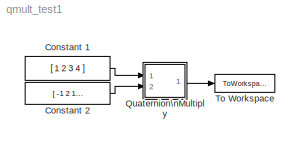
MODEL qmult_test1
KIND model
BLOCK [Constant] Constant 1
  Value = [ 1 2 3 4 ]
BLOCK [Constant] Constant 2
  Value = [  -1  2  1  -3 ]
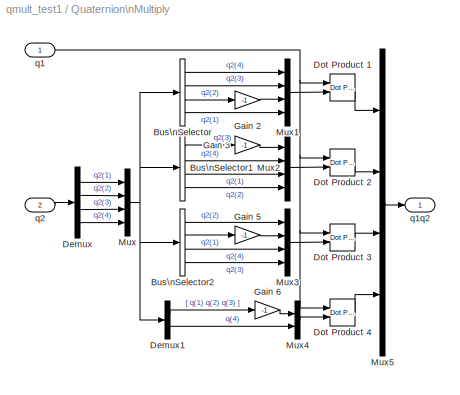
BLOCK [SubSystem] Quaternion\nMultiply
  FunctionWithSeparateData = off
  MaskDescription = q3 = (q1)(q2)
  MaskIconFrame = on
  MaskIconOpaque = on
  MaskIconRotate = none
  MaskIconUnits = pixels
  MaskType = Quaternion Multiply
  MinAlgLoopOccurrences = off
  Ports = [2, 1]
  RTWSystemCode = Auto
BLOCK [BusSelector] Quaternion\nMultiply/Bus\nSelector
  OutputSignals = q2(4),q2(3),q2(2),q2(1)
  Ports = [1, 4]
BLOCK [BusSelector] Quaternion\nMultiply/Bus\nSelector1
  OutputSignals = q2(3),q2(4),q2(1),q2(2)
  Ports = [1, 4]
BLOCK [BusSelector] Quaternion\nMultiply/Bus\nSelector2
  OutputSignals = q2(2),q2(1),q2(4),q2(3)
  Ports = [1, 4]
BLOCK [Demux] Quaternion\nMultiply/Demux
  Ports = [1, 4]
BLOCK [Demux] Quaternion\nMultiply/Demux1
  Outputs = [3 1]
  Ports = [1, 2]
BLOCK [Reference] Quaternion\nMultiply/Dot Product 1  REF=simulink/Math\nOperations/Dot Product
  DoSatur = off
  InputSameDT = on
  LockScale = off
  OutDataType = sfix(16)
  OutDataTypeStr = Inherit: Inherit via internal rule
  OutScaling = 2^-10
  OutputDataTypeScalingMode = Inherit via internal rule
  Ports = [2, 1]
  RndMeth = Floor
  SourceBlock = simulink/Math\nOperations/Dot Product
  SourceType = Dot Product
BLOCK [Reference] Quaternion\nMultiply/Dot Product 2  REF=simulink/Math\nOperations/Dot Product
  DoSatur = off
  InputSameDT = on
  LockScale = off
  OutDataType = sfix(16)
  OutDataTypeStr = Inherit: Inherit via internal rule
  OutScaling = 2^-10
  OutputDataTypeScalingMode = Inherit via internal rule
  Ports = [2, 1]
  RndMeth = Floor
  SourceBlock = simulink/Math\nOperations/Dot Product
  SourceType = Dot Product
BLOCK [Reference] Quaternion\nMultiply/Dot Product 3  REF=simulink/Math\nOperations/Dot Product
  DoSatur = off
  InputSameDT = on
  LockScale = off
  OutDataType = sfix(16)
  OutDataTypeStr = Inherit: Inherit via internal rule
  OutScaling = 2^-10
  OutputDataTypeScalingMode = Inherit via internal rule
  Ports = [2, 1]
  RndMeth = Floor
  SourceBlock = simulink/Math\nOperations/Dot Product
  SourceType = Dot Product
BLOCK [Reference] Quaternion\nMultiply/Dot Product 4  REF=simulink/Math\nOperations/Dot Product
  DoSatur = off
  InputSameDT = on
  LockScale = off
  OutDataType = sfix(16)
  OutDataTypeStr = Inherit: Inherit via internal rule
  OutScaling = 2^-10
  OutputDataTypeScalingMode = Inherit via internal rule
  Ports = [2, 1]
  RndMeth = Floor
  SourceBlock = simulink/Math\nOperations/Dot Product
  SourceType = Dot Product
BLOCK [Gain] Quaternion\nMultiply/Gain 2
  Gain = -1
BLOCK [Gain] Quaternion\nMultiply/Gain 3
  Gain = -1
BLOCK [Gain] Quaternion\nMultiply/Gain 5
  Gain = -1
BLOCK [Gain] Quaternion\nMultiply/Gain 6
  Gain = -1
BLOCK [Mux] Quaternion\nMultiply/Mux
  DisplayOption = bar
  Ports = [4, 1]
BLOCK [Mux] Quaternion\nMultiply/Mux1
  DisplayOption = bar
  Ports = [4, 1]
BLOCK [Mux] Quaternion\nMultiply/Mux2
  DisplayOption = bar
  Ports = [4, 1]
BLOCK [Mux] Quaternion\nMultiply/Mux3
  DisplayOption = bar
  Ports = [4, 1]
BLOCK [Mux] Quaternion\nMultiply/Mux4
  DisplayOption = bar
  Inputs = 2
  Ports = [2, 1]
BLOCK [Mux] Quaternion\nMultiply/Mux5
  DisplayOption = bar
  Ports = [4, 1]
BLOCK [Inport] Quaternion\nMultiply/q1
  IconDisplay = Port number
  PortDimensions = 4
BLOCK [Outport] Quaternion\nMultiply/q1q2
  IconDisplay = Port number
  InitialOutput = 0
BLOCK [Inport] Quaternion\nMultiply/q2
  IconDisplay = Port number
  Port = 2
  PortDimensions = 4
BLOCK [ToWorkspace] To Workspace
  MaxDataPoints = 1
  SampleTime = -1
  SaveFormat = Array
  VariableName = simout
LINE Constant 1:1 -> Quaternion\nMultiply:1
LINE Constant 2:1 -> Quaternion\nMultiply:2
LINE Quaternion\nMultiply/Bus\nSelector1:1 -> Quaternion\nMultiply/Gain 3:1
LINE Quaternion\nMultiply/Bus\nSelector1:2 -> Quaternion\nMultiply/Mux2:2
LINE Quaternion\nMultiply/Bus\nSelector1:3 -> Quaternion\nMultiply/Mux2:3
LINE Quaternion\nMultiply/Bus\nSelector1:4 -> Quaternion\nMultiply/Mux2:4
LINE Quaternion\nMultiply/Bus\nSelector2:1 -> Quaternion\nMultiply/Mux3:1
LINE Quaternion\nMultiply/Bus\nSelector2:2 -> Quaternion\nMultiply/Gain 5:1
LINE Quaternion\nMultiply/Bus\nSelector2:3 -> Quaternion\nMultiply/Mux3:3
LINE Quaternion\nMultiply/Bus\nSelector2:4 -> Quaternion\nMultiply/Mux3:4
LINE Quaternion\nMultiply/Bus\nSelector:1 -> Quaternion\nMultiply/Mux1:1
LINE Quaternion\nMultiply/Bus\nSelector:2 -> Quaternion\nMultiply/Mux1:2
LINE Quaternion\nMultiply/Bus\nSelector:3 -> Quaternion\nMultiply/Gain 2:1
LINE Quaternion\nMultiply/Bus\nSelector:4 -> Quaternion\nMultiply/Mux1:4
LINE Quaternion\nMultiply/Demux1:1 -> Quaternion\nMultiply/Gain 6:1
LINE Quaternion\nMultiply/Demux1:2 -> Quaternion\nMultiply/Mux4:2
LINE Quaternion\nMultiply/Demux:1 -> Quaternion\nMultiply/Mux:1
LINE Quaternion\nMultiply/Demux:2 -> Quaternion\nMultiply/Mux:2
LINE Quaternion\nMultiply/Demux:3 -> Quaternion\nMultiply/Mux:3
LINE Quaternion\nMultiply/Demux:4 -> Quaternion\nMultiply/Mux:4
LINE Quaternion\nMultiply/Dot Product 1:1 -> Quaternion\nMultiply/Mux5:1
LINE Quaternion\nMultiply/Dot Product 2:1 -> Quaternion\nMultiply/Mux5:2
LINE Quaternion\nMultiply/Dot Product 3:1 -> Quaternion\nMultiply/Mux5:3
LINE Quaternion\nMultiply/Dot Product 4:1 -> Quaternion\nMultiply/Mux5:4
LINE Quaternion\nMultiply/Gain 2:1 -> Quaternion\nMultiply/Mux1:3
LINE Quaternion\nMultiply/Gain 3:1 -> Quaternion\nMultiply/Mux2:1
LINE Quaternion\nMultiply/Gain 5:1 -> Quaternion\nMultiply/Mux3:2
LINE Quaternion\nMultiply/Gain 6:1 -> Quaternion\nMultiply/Mux4:1
LINE Quaternion\nMultiply/Mux1:1 -> Quaternion\nMultiply/Dot Product 1:2
LINE Quaternion\nMultiply/Mux2:1 -> Quaternion\nMultiply/Dot Product 2:2
LINE Quaternion\nMultiply/Mux3:1 -> Quaternion\nMultiply/Dot Product 3:2
LINE Quaternion\nMultiply/Mux4:1 -> Quaternion\nMultiply/Dot Product 4:2
LINE Quaternion\nMultiply/Mux5:1 -> Quaternion\nMultiply/q1q2:1
NET Quaternion\nMultiply/Mux:1 -> Quaternion\nMultiply/Bus\nSelector1:1, Quaternion\nMultiply/Bus\nSelector2:1, Quaternion\nMultiply/Bus\nSelector:1, Quaternion\nMultiply/Demux1:1
NET Quaternion\nMultiply/q1:1 -> Quaternion\nMultiply/Dot Product 1:1, Quaternion\nMultiply/Dot Product 2:1, Quaternion\nMultiply/Dot Product 3:1, Quaternion\nMultiply/Dot Product 4:1
LINE Quaternion\nMultiply/q2:1 -> Quaternion\nMultiply/Demux:1
LINE Quaternion\nMultiply:1 -> To Workspace:1
note: NET lines group one-source signal fan-out (src -> all destinations, sorted); 1:1 wires keep LINE
